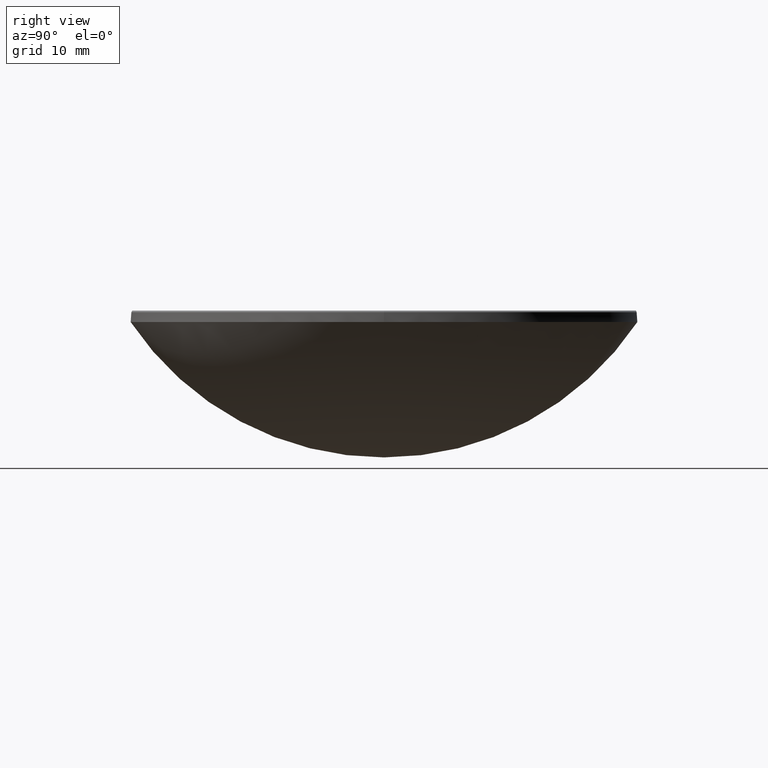
[diagram: clean part render]
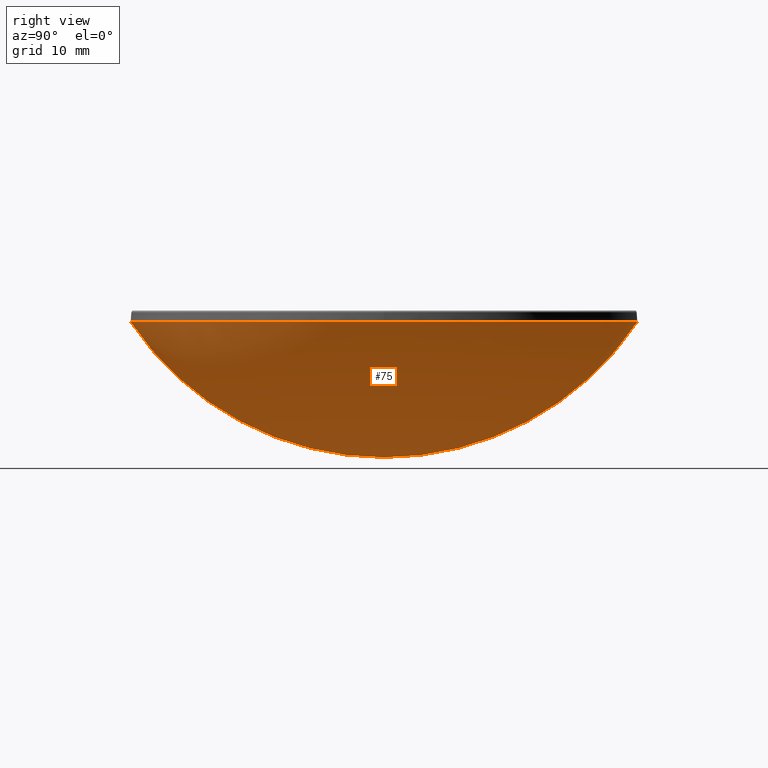
[diagram: same view with one face highlighted and labeled with its STEP entity id]
A machine part, right view. The second image highlights one B-rep face of the part: STEP entity #75.
In plain terms, the highlighted spherical surface has radius 30.55 mm.
Its self-contained STEP definition (entity closure, byte-faithful):
#10 = AXIS2_PLACEMENT_3D ( 'NONE', #73, #66, #273 ) ;
#19 = CIRCLE ( 'NONE', #39, 30.55000000000000071 ) ;
#20 = VERTEX_POINT ( 'NONE', #47 ) ;
#32 = SPHERICAL_SURFACE ( 'NONE', #87, 30.55000000000000071 ) ;
#37 = VERTEX_POINT ( 'NONE', #111 ) ;
#38 = ORIENTED_EDGE ( 'NONE', *, *, #257, .F. ) ;
#39 = AXIS2_PLACEMENT_3D ( 'NONE', #222, #166, #242 ) ;
#42 = DIRECTION ( 'NONE',  ( 0.000000000000000000, 1.000000000000000000, 0.000000000000000000 ) ) ;
#43 = EDGE_CURVE ( 'NONE', #20, #37, #220, .T. ) ;
#44 = DIRECTION ( 'NONE',  ( 1.000000000000000000, 0.000000000000000000, 0.000000000000000000 ) ) ;
#47 = CARTESIAN_POINT ( 'NONE',  ( 25.39999999999999503, 3.110602869834276471E-15, 15.00000000000000000 ) ) ;
#50 = DIRECTION ( 'NONE',  ( 1.000000000000000000, 0.000000000000000000, 0.000000000000000000 ) ) ;
#64 = DIRECTION ( 'NONE',  ( -1.000000000000000000, 0.000000000000000000, 0.000000000000000000 ) ) ;
#66 = DIRECTION ( 'NONE',  ( 1.000000000000000000, -0.000000000000000000, 0.000000000000000000 ) ) ;
#73 = CARTESIAN_POINT ( 'NONE',  ( 0.000000000000000000, 0.000000000000000000, 31.97476067577979819 ) ) ;
#75 = ADVANCED_FACE ( 'NONE', ( #104 ), #32, .T. ) ;
#87 = AXIS2_PLACEMENT_3D ( 'NONE', #262, #64, #42 ) ;
#90 = DIRECTION ( 'NONE',  ( -0.000000000000000000, -0.000000000000000000, 1.000000000000000000 ) ) ;
#93 = CIRCLE ( 'NONE', #10, 30.55000000000000071 ) ;
#104 = FACE_OUTER_BOUND ( 'NONE', #189, .T. ) ;
#105 = ORIENTED_EDGE ( 'NONE', *, *, #43, .F. ) ;
#111 = CARTESIAN_POINT ( 'NONE',  ( 0.000000000000000000, 25.39999999999999858, 15.00000000000000178 ) ) ;
#120 = AXIS2_PLACEMENT_3D ( 'NONE', #267, #90, #50 ) ;
#127 = CIRCLE ( 'NONE', #206, 25.39999999999999503 ) ;
#129 = CARTESIAN_POINT ( 'NONE',  ( 0.000000000000000000, 1.870647985697581912E-15, 1.424760675779797259 ) ) ;
#145 = VERTEX_POINT ( 'NONE', #228 ) ;
#159 = VERTEX_POINT ( 'NONE', #129 ) ;
#166 = DIRECTION ( 'NONE',  ( -1.000000000000000000, 1.224646799147353207E-16, 0.000000000000000000 ) ) ;
#182 = ORIENTED_EDGE ( 'NONE', *, *, #235, .T. ) ;
#189 = EDGE_LOOP ( 'NONE', ( #38, #182, #105, #275 ) ) ;
#206 = AXIS2_PLACEMENT_3D ( 'NONE', #251, #244, #44 ) ;
#220 = CIRCLE ( 'NONE', #120, 25.39999999999999503 ) ;
#222 = CARTESIAN_POINT ( 'NONE',  ( 0.000000000000000000, 0.000000000000000000, 31.97476067577979819 ) ) ;
#228 = CARTESIAN_POINT ( 'NONE',  ( -3.110602869834276471E-15, -25.39999999999999858, 15.00000000000000178 ) ) ;
#235 = EDGE_CURVE ( 'NONE', #159, #37, #93, .T. ) ;
#242 = DIRECTION ( 'NONE',  ( -1.224646799147353207E-16, -1.000000000000000000, 0.000000000000000000 ) ) ;
#244 = DIRECTION ( 'NONE',  ( -0.000000000000000000, -0.000000000000000000, 1.000000000000000000 ) ) ;
#251 = CARTESIAN_POINT ( 'NONE',  ( 0.000000000000000000, 0.000000000000000000, 15.00000000000000000 ) ) ;
#257 = EDGE_CURVE ( 'NONE', #159, #145, #19, .T. ) ;
#258 = EDGE_CURVE ( 'NONE', #145, #20, #127, .T. ) ;
#262 = CARTESIAN_POINT ( 'NONE',  ( 0.000000000000000000, 0.000000000000000000, 31.97476067577979819 ) ) ;
#267 = CARTESIAN_POINT ( 'NONE',  ( 0.000000000000000000, 0.000000000000000000, 15.00000000000000000 ) ) ;
#273 = DIRECTION ( 'NONE',  ( 0.000000000000000000, 0.000000000000000000, -1.000000000000000000 ) ) ;
#275 = ORIENTED_EDGE ( 'NONE', *, *, #258, .F. ) ;